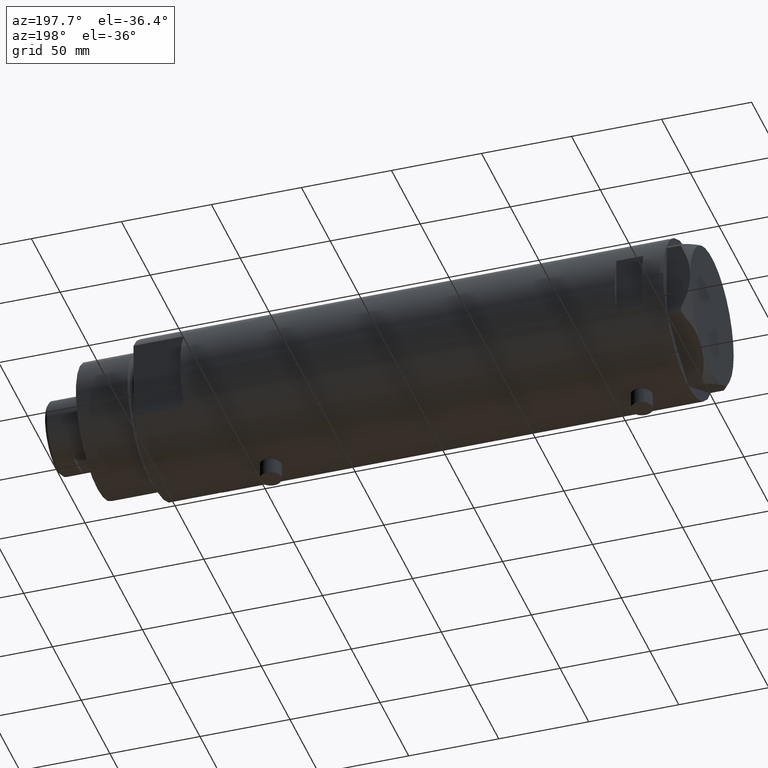
[diagram: clean part render]
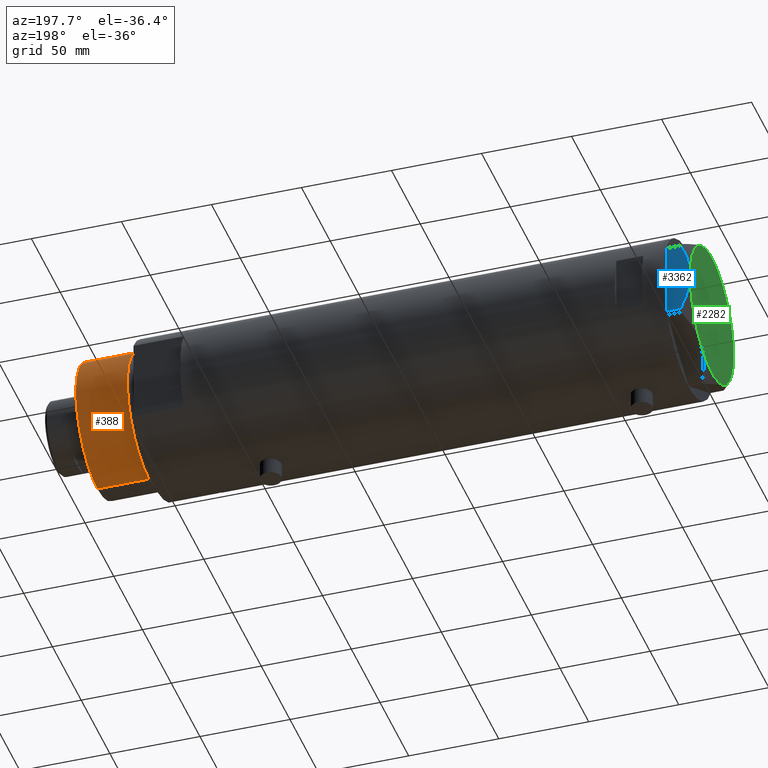
[diagram: same view with three faces highlighted in distinct colors, each labeled with its STEP entity id]
A machine part, auxiliary view with three faces highlighted in distinct colors.
Their STEP definitions:

[orange] entity #388 — the highlighted cylindrical surface (partial cylindrical patch) has radius 37.5 mm, axis along (-1, -0, 0).
#72 = CARTESIAN_POINT ( 'NONE',  ( 0.000000000000000000, 0.000000000000000000, 59.89999999999999147 ) ) ;
#155 = EDGE_LOOP ( 'NONE', ( #1068, #1254, #3258, #1186 ) ) ;
#246 = CIRCLE ( 'NONE', #1415, 37.50000000000000711 ) ;
#388 = ADVANCED_FACE ( 'NONE', ( #1865 ), #2152, .T. ) ;
#688 = DIRECTION ( 'NONE',  ( 0.000000000000000000, 0.000000000000000000, 1.000000000000000000 ) ) ;
#767 = DIRECTION ( 'NONE',  ( -1.000000000000000000, 0.000000000000000000, 0.000000000000000000 ) ) ;
#960 = VECTOR ( 'NONE', #3936, 1000.000000000000000 ) ;
#1045 = VERTEX_POINT ( 'NONE', #3914 ) ;
#1050 = LINE ( 'NONE', #2770, #960 ) ;
#1068 = ORIENTED_EDGE ( 'NONE', *, *, #4136, .F. ) ;
#1106 = AXIS2_PLACEMENT_3D ( 'NONE', #72, #3220, #767 ) ;
#1137 = LINE ( 'NONE', #1843, #1544 ) ;
#1186 = ORIENTED_EDGE ( 'NONE', *, *, #2310, .F. ) ;
#1228 = CARTESIAN_POINT ( 'NONE',  ( -37.50000000000000711, 0.000000000000000000, 31.27384048104054415 ) ) ;
#1254 = ORIENTED_EDGE ( 'NONE', *, *, #2035, .T. ) ;
#1415 = AXIS2_PLACEMENT_3D ( 'NONE', #2629, #2830, #4013 ) ;
#1544 = VECTOR ( 'NONE', #2960, 1000.000000000000000 ) ;
#1661 = VERTEX_POINT ( 'NONE', #3225 ) ;
#1766 = AXIS2_PLACEMENT_3D ( 'NONE', #4204, #688, #2816 ) ;
#1843 = CARTESIAN_POINT ( 'NONE',  ( 37.50000000000000711, 4.592425496802575156E-15, 59.89999999999999147 ) ) ;
#1865 = FACE_OUTER_BOUND ( 'NONE', #155, .T. ) ;
#2035 = EDGE_CURVE ( 'NONE', #1661, #3786, #1137, .T. ) ;
#2152 = CYLINDRICAL_SURFACE ( 'NONE', #1106, 37.50000000000000711 ) ;
#2310 = EDGE_CURVE ( 'NONE', #1045, #3344, #1050, .T. ) ;
#2629 = CARTESIAN_POINT ( 'NONE',  ( 0.000000000000000000, 0.000000000000000000, 31.27384048104054415 ) ) ;
#2770 = CARTESIAN_POINT ( 'NONE',  ( -37.50000000000000711, 0.000000000000000000, 59.89999999999999147 ) ) ;
#2816 = DIRECTION ( 'NONE',  ( 1.000000000000000000, 0.000000000000000000, 0.000000000000000000 ) ) ;
#2830 = DIRECTION ( 'NONE',  ( -0.000000000000000000, -0.000000000000000000, 1.000000000000000000 ) ) ;
#2960 = DIRECTION ( 'NONE',  ( -0.000000000000000000, -0.000000000000000000, -1.000000000000000000 ) ) ;
#3220 = DIRECTION ( 'NONE',  ( -0.000000000000000000, -0.000000000000000000, -1.000000000000000000 ) ) ;
#3225 = CARTESIAN_POINT ( 'NONE',  ( 37.50000000000000711, 4.592425496802575156E-15, 59.89999999999999147 ) ) ;
#3258 = ORIENTED_EDGE ( 'NONE', *, *, #4487, .T. ) ;
#3344 = VERTEX_POINT ( 'NONE', #1228 ) ;
#3483 = CIRCLE ( 'NONE', #1766, 37.50000000000000711 ) ;
#3786 = VERTEX_POINT ( 'NONE', #4083 ) ;
#3914 = CARTESIAN_POINT ( 'NONE',  ( -37.50000000000000711, 0.000000000000000000, 59.89999999999999147 ) ) ;
#3936 = DIRECTION ( 'NONE',  ( -0.000000000000000000, -0.000000000000000000, -1.000000000000000000 ) ) ;
#4013 = DIRECTION ( 'NONE',  ( 1.000000000000000000, 0.000000000000000000, 0.000000000000000000 ) ) ;
#4083 = CARTESIAN_POINT ( 'NONE',  ( 37.50000000000000711, 4.592425496802575156E-15, 31.27384048104054415 ) ) ;
#4136 = EDGE_CURVE ( 'NONE', #1661, #1045, #3483, .T. ) ;
#4204 = CARTESIAN_POINT ( 'NONE',  ( 0.000000000000000000, 0.000000000000000000, 59.89999999999999147 ) ) ;
#4487 = EDGE_CURVE ( 'NONE', #3786, #3344, #246, .T. ) ;

[blue] entity #3362 — the highlighted planar face has unit normal (0, -1, -0).
#22 = VERTEX_POINT ( 'NONE', #2394 ) ;
#93 = EDGE_LOOP ( 'NONE', ( #4022, #4494, #3864, #3120, #329 ) ) ;
#174 = DIRECTION ( 'NONE',  ( 4.775569585389645902E-16, -1.000000000000000000, 0.000000000000000000 ) ) ;
#281 = CARTESIAN_POINT ( 'NONE',  ( 37.75000000000000711, 1.802777518484591547E-14, 13.00000000000000000 ) ) ;
#315 = B_SPLINE_CURVE_WITH_KNOTS ( 'NONE', 3,
 ( #4306, #4109, #3719, #2703, #4483, #4068, #3065, #1336, #2042, #281 ),
 .UNSPECIFIED., .F., .F.,
 ( 4, 2, 2, 2, 4 ),
 ( 0.05601050456479946676, 0.06138217239161374711, 0.06406800630502089422, 0.06675384021842803439, 0.07749717587205659508 ),
 .UNSPECIFIED. ) ;
#329 = ORIENTED_EDGE ( 'NONE', *, *, #4201, .F. ) ;
#339 = CARTESIAN_POINT ( 'NONE',  ( 37.75000000000000711, 16.56731140591521978, 9.531835068628826235 ) ) ;
#393 = B_SPLINE_CURVE_WITH_KNOTS ( 'NONE', 3,
 ( #3180, #3121, #1685, #4190, #3079, #4499, #1030, #2431, #677, #339, #2804, #4219, #1055, #2096 ),
 .UNSPECIFIED., .F., .F.,
 ( 4, 2, 2, 2, 2, 2, 4 ),
 ( 0.07749717587205659508, 0.08017617902235897598, 0.08285518217266137075, 0.08821318847326614643, 0.09357119477387092210, 0.09625019792417330300, 0.09892920107447569777 ),
 .UNSPECIFIED. ) ;
#445 = DIRECTION ( 'NONE',  ( -4.775569585389645902E-16, 1.000000000000000000, 0.000000000000000000 ) ) ;
#571 = CARTESIAN_POINT ( 'NONE',  ( 37.75000000000000000, 20.67497266190835958, 7.709124142616976094 ) ) ;
#664 = EDGE_CURVE ( 'NONE', #22, #3907, #315, .T. ) ;
#677 = CARTESIAN_POINT ( 'NONE',  ( 37.75000000000000000, 14.04742653794396823, 10.50092616350622166 ) ) ;
#839 = DIRECTION ( 'NONE',  ( -1.000000000000000000, -4.775569585389645902E-16, 0.000000000000000000 ) ) ;
#1030 = CARTESIAN_POINT ( 'NONE',  ( 37.75000000000000711, 8.905753572404311313, 11.99914237172014353 ) ) ;
#1034 = EDGE_CURVE ( 'NONE', #3291, #2166, #4265, .T. ) ;
#1055 = CARTESIAN_POINT ( 'NONE',  ( 37.75000000000000000, 19.86857906850807964, 8.096480699986591034 ) ) ;
#1336 = CARTESIAN_POINT ( 'NONE',  ( 37.75000000000000711, -7.143641079404811300, 12.47474846747315347 ) ) ;
#1465 = VECTOR ( 'NONE', #2534, 1000.000000000000000 ) ;
#1685 = CARTESIAN_POINT ( 'NONE',  ( 37.75000000000000000, 1.811728074765807994, 12.96720910498919466 ) ) ;
#1758 = CARTESIAN_POINT ( 'NONE',  ( 37.75000000000002132, -20.67497266190835958, 0.000000000000000000 ) ) ;
#1996 = EDGE_CURVE ( 'NONE', #4485, #3291, #4279, .T. ) ;
#2042 = CARTESIAN_POINT ( 'NONE',  ( 37.75000000000000000, -3.615248338761618552, 12.99999999999998934 ) ) ;
#2096 = CARTESIAN_POINT ( 'NONE',  ( 37.75000000000000000, 20.67497266190835958, 7.709124142616976094 ) ) ;
#2137 = PLANE ( 'NONE',  #2215 ) ;
#2166 = VERTEX_POINT ( 'NONE', #571 ) ;
#2176 = CARTESIAN_POINT ( 'NONE',  ( 37.75000000000002132, -21.79497266190837124, 0.000000000000000000 ) ) ;
#2215 = AXIS2_PLACEMENT_3D ( 'NONE', #4295, #839, #174 ) ;
#2344 = CARTESIAN_POINT ( 'NONE',  ( 37.75000000000000711, 1.802777518484591547E-14, 13.00000000000000000 ) ) ;
#2347 = CARTESIAN_POINT ( 'NONE',  ( 37.75000000000002132, -20.67497266190835958, 13.00000000000000000 ) ) ;
#2388 = LINE ( 'NONE', #2347, #4436 ) ;
#2394 = CARTESIAN_POINT ( 'NONE',  ( 37.75000000000002132, -20.67497266190837024, 7.709124142616982311 ) ) ;
#2431 = CARTESIAN_POINT ( 'NONE',  ( 37.75000000000000711, 12.34877760086738441, 11.06613894200179260 ) ) ;
#2534 = DIRECTION ( 'NONE',  ( 0.000000000000000000, 0.000000000000000000, 1.000000000000000000 ) ) ;
#2567 = FACE_OUTER_BOUND ( 'NONE', #93, .T. ) ;
#2703 = CARTESIAN_POINT ( 'NONE',  ( 37.75000000000001421, -14.89874562435959504, 10.17375260246623547 ) ) ;
#2741 = DIRECTION ( 'NONE',  ( 0.000000000000000000, 0.000000000000000000, -1.000000000000000000 ) ) ;
#2804 = CARTESIAN_POINT ( 'NONE',  ( 37.75000000000000000, 17.40390235304479560, 9.187919079516760235 ) ) ;
#2851 = CARTESIAN_POINT ( 'NONE',  ( 37.75000000000000000, 20.67497266190835958, 0.000000000000000000 ) ) ;
#3065 = CARTESIAN_POINT ( 'NONE',  ( 37.75000000000002132, -11.46926194450820802, 11.30493988086502632 ) ) ;
#3079 = CARTESIAN_POINT ( 'NONE',  ( 37.75000000000000711, 4.503994958793054337, 12.74237531377021604 ) ) ;
#3118 = EDGE_CURVE ( 'NONE', #22, #4485, #2388, .T. ) ;
#3120 = ORIENTED_EDGE ( 'NONE', *, *, #1034, .T. ) ;
#3121 = CARTESIAN_POINT ( 'NONE',  ( 37.75000000000000711, 0.9015134592203699615, 12.99999999999999112 ) ) ;
#3180 = CARTESIAN_POINT ( 'NONE',  ( 37.75000000000000711, 1.802777518484591547E-14, 13.00000000000000000 ) ) ;
#3291 = VERTEX_POINT ( 'NONE', #2851 ) ;
#3362 = ADVANCED_FACE ( 'NONE', ( #2567 ), #2137, .F. ) ;
#3595 = CARTESIAN_POINT ( 'NONE',  ( 37.75000000000000000, 20.67497266190835958, 13.00000000000000000 ) ) ;
#3719 = CARTESIAN_POINT ( 'NONE',  ( 37.75000000000002132, -17.42329546264822682, 9.202188366597432889 ) ) ;
#3751 = VECTOR ( 'NONE', #445, 1000.000000000000000 ) ;
#3864 = ORIENTED_EDGE ( 'NONE', *, *, #1996, .T. ) ;
#3907 = VERTEX_POINT ( 'NONE', #2344 ) ;
#4022 = ORIENTED_EDGE ( 'NONE', *, *, #664, .F. ) ;
#4068 = CARTESIAN_POINT ( 'NONE',  ( 37.75000000000001421, -12.33018559404072256, 11.04557586999680296 ) ) ;
#4109 = CARTESIAN_POINT ( 'NONE',  ( 37.75000000000001421, -19.06473524669325315, 8.482612457517156201 ) ) ;
#4190 = CARTESIAN_POINT ( 'NONE',  ( 37.75000000000000711, 3.611424898442247233, 12.83826937481875596 ) ) ;
#4201 = EDGE_CURVE ( 'NONE', #3907, #2166, #393, .T. ) ;
#4219 = CARTESIAN_POINT ( 'NONE',  ( 37.75000000000000000, 19.05362936076134162, 8.470554105526112210 ) ) ;
#4265 = LINE ( 'NONE', #3595, #1465 ) ;
#4279 = LINE ( 'NONE', #2176, #3751 ) ;
#4295 = CARTESIAN_POINT ( 'NONE',  ( 37.75000000000002132, -21.79497266190837124, 13.00000000000000000 ) ) ;
#4306 = CARTESIAN_POINT ( 'NONE',  ( 37.75000000000002132, -20.67497266190837024, 7.709124142616982311 ) ) ;
#4436 = VECTOR ( 'NONE', #2741, 1000.000000000000000 ) ;
#4483 = CARTESIAN_POINT ( 'NONE',  ( 37.75000000000002132, -14.04433099034386778, 10.48027127384610679 ) ) ;
#4485 = VERTEX_POINT ( 'NONE', #1758 ) ;
#4494 = ORIENTED_EDGE ( 'NONE', *, *, #3118, .T. ) ;
#4499 = CARTESIAN_POINT ( 'NONE',  ( 37.75000000000000000, 7.161343005612795132, 12.36677985830370829 ) ) ;

[green] entity #2282 — the highlighted planar face has unit normal (-1, -0, 0).
#386 = DIRECTION ( 'NONE',  ( 1.000000000000000000, 0.000000000000000000, 0.000000000000000000 ) ) ;
#633 = DIRECTION ( 'NONE',  ( 1.000000000000000000, 0.000000000000000000, 0.000000000000000000 ) ) ;
#642 = AXIS2_PLACEMENT_3D ( 'NONE', #3049, #2293, #2378 ) ;
#718 = VERTEX_POINT ( 'NONE', #948 ) ;
#731 = AXIS2_PLACEMENT_3D ( 'NONE', #4213, #2824, #1122 ) ;
#747 = VERTEX_POINT ( 'NONE', #1672 ) ;
#903 = AXIS2_PLACEMENT_3D ( 'NONE', #2992, #4389, #4408 ) ;
#908 = DIRECTION ( 'NONE',  ( 1.000000000000000000, 0.000000000000000000, 0.000000000000000000 ) ) ;
#948 = CARTESIAN_POINT ( 'NONE',  ( 18.87499999999998579, -32.69245899286256218, 13.00000000000000000 ) ) ;
#1006 = CARTESIAN_POINT ( 'NONE',  ( 0.000000000000000000, 0.000000000000000000, 13.00000000000000000 ) ) ;
#1040 = EDGE_CURVE ( 'NONE', #3907, #747, #1674, .T. ) ;
#1103 = CARTESIAN_POINT ( 'NONE',  ( 0.000000000000000000, 0.000000000000000000, 13.00000000000000000 ) ) ;
#1122 = DIRECTION ( 'NONE',  ( 1.000000000000000000, 0.000000000000000000, -0.000000000000000000 ) ) ;
#1155 = CARTESIAN_POINT ( 'NONE',  ( -18.87499999999999645, 32.69245899286256218, 13.00000000000000000 ) ) ;
#1429 = EDGE_CURVE ( 'NONE', #2823, #718, #2654, .T. ) ;
#1440 = ORIENTED_EDGE ( 'NONE', *, *, #3124, .T. ) ;
#1502 = ORIENTED_EDGE ( 'NONE', *, *, #1040, .T. ) ;
#1504 = CARTESIAN_POINT ( 'NONE',  ( -18.87499999999999645, -32.69245899286255508, 13.00000000000000000 ) ) ;
#1620 = ORIENTED_EDGE ( 'NONE', *, *, #2392, .T. ) ;
#1672 = CARTESIAN_POINT ( 'NONE',  ( 18.87500000000000000, 32.69245899286255508, 13.00000000000000000 ) ) ;
#1674 = CIRCLE ( 'NONE', #3896, 37.75000000000000000 ) ;
#1718 = ORIENTED_EDGE ( 'NONE', *, *, #3005, .T. ) ;
#1730 = DIRECTION ( 'NONE',  ( 0.000000000000000000, 0.000000000000000000, 1.000000000000000000 ) ) ;
#2136 = AXIS2_PLACEMENT_3D ( 'NONE', #2683, #2260, #908 ) ;
#2243 = VERTEX_POINT ( 'NONE', #2384 ) ;
#2260 = DIRECTION ( 'NONE',  ( 0.000000000000000000, 0.000000000000000000, 1.000000000000000000 ) ) ;
#2282 = ADVANCED_FACE ( 'NONE', ( #2868 ), #2498, .T. ) ;
#2293 = DIRECTION ( 'NONE',  ( 0.000000000000000000, 0.000000000000000000, 1.000000000000000000 ) ) ;
#2344 = CARTESIAN_POINT ( 'NONE',  ( 37.75000000000000711, 1.802777518484591547E-14, 13.00000000000000000 ) ) ;
#2372 = ORIENTED_EDGE ( 'NONE', *, *, #3308, .T. ) ;
#2378 = DIRECTION ( 'NONE',  ( 1.000000000000000000, 0.000000000000000000, 0.000000000000000000 ) ) ;
#2384 = CARTESIAN_POINT ( 'NONE',  ( -37.75000000000000000, -1.201851678989727067E-14, 13.00000000000000000 ) ) ;
#2392 = EDGE_CURVE ( 'NONE', #718, #3907, #3756, .T. ) ;
#2498 = PLANE ( 'NONE',  #731 ) ;
#2654 = CIRCLE ( 'NONE', #642, 37.75000000000000000 ) ;
#2663 = CIRCLE ( 'NONE', #2136, 37.75000000000000000 ) ;
#2683 = CARTESIAN_POINT ( 'NONE',  ( 0.000000000000000000, 0.000000000000000000, 13.00000000000000000 ) ) ;
#2774 = DIRECTION ( 'NONE',  ( 0.000000000000000000, 0.000000000000000000, 1.000000000000000000 ) ) ;
#2823 = VERTEX_POINT ( 'NONE', #1504 ) ;
#2824 = DIRECTION ( 'NONE',  ( 0.000000000000000000, 0.000000000000000000, 1.000000000000000000 ) ) ;
#2868 = FACE_OUTER_BOUND ( 'NONE', #3444, .T. ) ;
#2992 = CARTESIAN_POINT ( 'NONE',  ( 0.000000000000000000, 0.000000000000000000, 13.00000000000000000 ) ) ;
#3005 = EDGE_CURVE ( 'NONE', #747, #3352, #2663, .T. ) ;
#3049 = CARTESIAN_POINT ( 'NONE',  ( 0.000000000000000000, 0.000000000000000000, 13.00000000000000000 ) ) ;
#3088 = AXIS2_PLACEMENT_3D ( 'NONE', #3138, #3549, #386 ) ;
#3124 = EDGE_CURVE ( 'NONE', #2243, #2823, #4206, .T. ) ;
#3138 = CARTESIAN_POINT ( 'NONE',  ( 0.000000000000000000, 0.000000000000000000, 13.00000000000000000 ) ) ;
#3308 = EDGE_CURVE ( 'NONE', #3352, #2243, #3622, .T. ) ;
#3330 = ORIENTED_EDGE ( 'NONE', *, *, #1429, .T. ) ;
#3352 = VERTEX_POINT ( 'NONE', #1155 ) ;
#3444 = EDGE_LOOP ( 'NONE', ( #1620, #1502, #1718, #2372, #1440, #3330 ) ) ;
#3549 = DIRECTION ( 'NONE',  ( 0.000000000000000000, 0.000000000000000000, 1.000000000000000000 ) ) ;
#3622 = CIRCLE ( 'NONE', #903, 37.75000000000000000 ) ;
#3695 = AXIS2_PLACEMENT_3D ( 'NONE', #1006, #1730, #633 ) ;
#3756 = CIRCLE ( 'NONE', #3088, 37.75000000000000000 ) ;
#3896 = AXIS2_PLACEMENT_3D ( 'NONE', #1103, #2774, #4290 ) ;
#3907 = VERTEX_POINT ( 'NONE', #2344 ) ;
#4206 = CIRCLE ( 'NONE', #3695, 37.75000000000000000 ) ;
#4213 = CARTESIAN_POINT ( 'NONE',  ( 0.000000000000000000, 0.000000000000000000, 13.00000000000000000 ) ) ;
#4290 = DIRECTION ( 'NONE',  ( 1.000000000000000000, 0.000000000000000000, 0.000000000000000000 ) ) ;
#4389 = DIRECTION ( 'NONE',  ( 0.000000000000000000, 0.000000000000000000, 1.000000000000000000 ) ) ;
#4408 = DIRECTION ( 'NONE',  ( 1.000000000000000000, 0.000000000000000000, 0.000000000000000000 ) ) ;